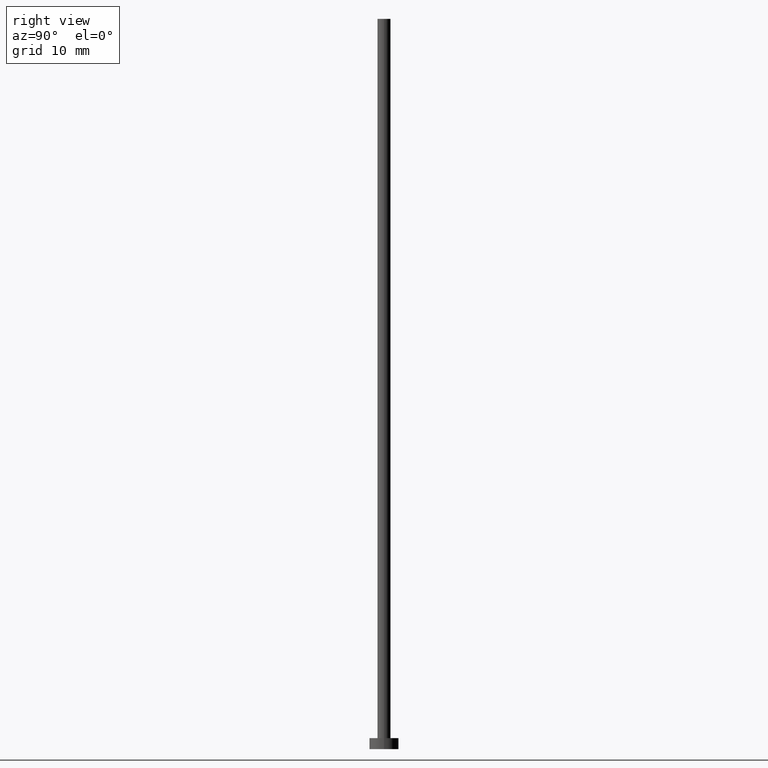
[diagram: clean part render]
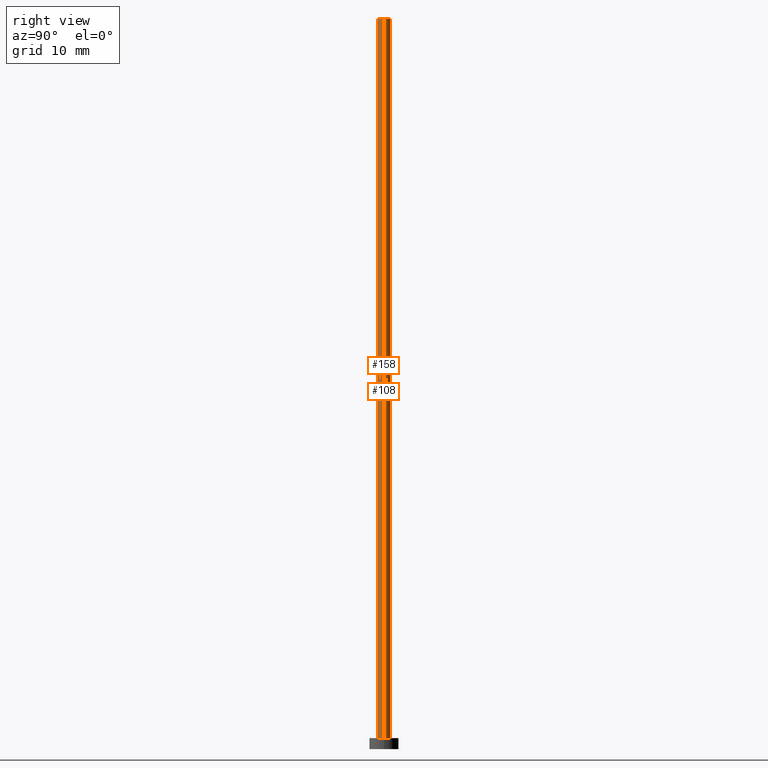
[diagram: same view with one multi-face feature highlighted, each face labeled with its STEP entity id]
A machine part, right view. The highlighted faces form ONE feature: a constant-radius fillet chain: 2 tangent blend faces with common blend radius 0.9 mm. The faces share edges in the B-rep.
Their STEP definitions:
[1] entity #158 (Cylinder):
#2 = AXIS2_PLACEMENT_3D ( 'NONE', #97, #25, #206 ) ;
#3 = ORIENTED_EDGE ( 'NONE', *, *, #219, .F. ) ;
#6 = EDGE_CURVE ( 'NONE', #112, #200, #64, .T. ) ;
#21 = CARTESIAN_POINT ( 'NONE',  ( 0.000000000000000000, 0.000000000000000000, 100.0000000000000000 ) ) ;
#25 = DIRECTION ( 'NONE',  ( -0.000000000000000000, -0.000000000000000000, -1.000000000000000000 ) ) ;
#27 = FACE_OUTER_BOUND ( 'NONE', #123, .T. ) ;
#32 = CARTESIAN_POINT ( 'NONE',  ( 0.9000000000000000222, 1.102182119232617788E-16, 100.0000000000000000 ) ) ;
#41 = CYLINDRICAL_SURFACE ( 'NONE', #2, 0.9000000000000000222 ) ;
#61 = VERTEX_POINT ( 'NONE', #96 ) ;
#64 = CIRCLE ( 'NONE', #121, 0.9000000000000000222 ) ;
#70 = VECTOR ( 'NONE', #195, 1000.000000000000000 ) ;
#72 = CARTESIAN_POINT ( 'NONE',  ( 0.000000000000000000, 0.000000000000000000, 1.500000000000000000 ) ) ;
#75 = ORIENTED_EDGE ( 'NONE', *, *, #232, .T. ) ;
#91 = DIRECTION ( 'NONE',  ( 1.000000000000000000, 0.000000000000000000, 0.000000000000000000 ) ) ;
#92 = EDGE_CURVE ( 'NONE', #142, #200, #122, .T. ) ;
#96 = CARTESIAN_POINT ( 'NONE',  ( -0.9000000000000000222, 0.000000000000000000, 100.0000000000000000 ) ) ;
#97 = CARTESIAN_POINT ( 'NONE',  ( 0.000000000000000000, 0.000000000000000000, 100.0000000000000000 ) ) ;
#106 = DIRECTION ( 'NONE',  ( -0.000000000000000000, -0.000000000000000000, -1.000000000000000000 ) ) ;
#112 = VERTEX_POINT ( 'NONE', #226 ) ;
#121 = AXIS2_PLACEMENT_3D ( 'NONE', #72, #237, #151 ) ;
#122 = LINE ( 'NONE', #32, #234 ) ;
#123 = EDGE_LOOP ( 'NONE', ( #160, #3, #75, #208 ) ) ;
#141 = CIRCLE ( 'NONE', #202, 0.9000000000000000222 ) ;
#142 = VERTEX_POINT ( 'NONE', #192 ) ;
#151 = DIRECTION ( 'NONE',  ( 1.000000000000000000, 0.000000000000000000, 0.000000000000000000 ) ) ;
#158 = ADVANCED_FACE ( 'NONE', ( #27 ), #41, .T. ) ;
#160 = ORIENTED_EDGE ( 'NONE', *, *, #92, .F. ) ;
#171 = LINE ( 'NONE', #253, #70 ) ;
#192 = CARTESIAN_POINT ( 'NONE',  ( 0.9000000000000000222, 1.102182119232617788E-16, 100.0000000000000000 ) ) ;
#195 = DIRECTION ( 'NONE',  ( -0.000000000000000000, -0.000000000000000000, -1.000000000000000000 ) ) ;
#200 = VERTEX_POINT ( 'NONE', #252 ) ;
#202 = AXIS2_PLACEMENT_3D ( 'NONE', #21, #255, #91 ) ;
#206 = DIRECTION ( 'NONE',  ( -1.000000000000000000, 0.000000000000000000, 0.000000000000000000 ) ) ;
#208 = ORIENTED_EDGE ( 'NONE', *, *, #6, .T. ) ;
#219 = EDGE_CURVE ( 'NONE', #61, #142, #141, .T. ) ;
#226 = CARTESIAN_POINT ( 'NONE',  ( -0.9000000000000000222, 0.000000000000000000, 1.500000000000000000 ) ) ;
#232 = EDGE_CURVE ( 'NONE', #61, #112, #171, .T. ) ;
#234 = VECTOR ( 'NONE', #106, 1000.000000000000000 ) ;
#237 = DIRECTION ( 'NONE',  ( 0.000000000000000000, 0.000000000000000000, 1.000000000000000000 ) ) ;
#252 = CARTESIAN_POINT ( 'NONE',  ( 0.9000000000000000222, 1.102182119232617788E-16, 1.500000000000000000 ) ) ;
#253 = CARTESIAN_POINT ( 'NONE',  ( -0.9000000000000000222, 0.000000000000000000, 100.0000000000000000 ) ) ;
#255 = DIRECTION ( 'NONE',  ( 0.000000000000000000, 0.000000000000000000, 1.000000000000000000 ) ) ;
[2] entity #108 (Cylinder):
#1 = DIRECTION ( 'NONE',  ( 0.000000000000000000, 0.000000000000000000, 1.000000000000000000 ) ) ;
#7 = CARTESIAN_POINT ( 'NONE',  ( 0.000000000000000000, 0.000000000000000000, 100.0000000000000000 ) ) ;
#31 = DIRECTION ( 'NONE',  ( -0.000000000000000000, -0.000000000000000000, -1.000000000000000000 ) ) ;
#32 = CARTESIAN_POINT ( 'NONE',  ( 0.9000000000000000222, 1.102182119232617788E-16, 100.0000000000000000 ) ) ;
#33 = CIRCLE ( 'NONE', #169, 0.9000000000000000222 ) ;
#37 = DIRECTION ( 'NONE',  ( 1.000000000000000000, 0.000000000000000000, 0.000000000000000000 ) ) ;
#59 = EDGE_LOOP ( 'NONE', ( #199, #81, #191, #76 ) ) ;
#61 = VERTEX_POINT ( 'NONE', #96 ) ;
#69 = CYLINDRICAL_SURFACE ( 'NONE', #183, 0.9000000000000000222 ) ;
#70 = VECTOR ( 'NONE', #195, 1000.000000000000000 ) ;
#74 = EDGE_CURVE ( 'NONE', #200, #112, #33, .T. ) ;
#76 = ORIENTED_EDGE ( 'NONE', *, *, #232, .F. ) ;
#81 = ORIENTED_EDGE ( 'NONE', *, *, #92, .T. ) ;
#92 = EDGE_CURVE ( 'NONE', #142, #200, #122, .T. ) ;
#96 = CARTESIAN_POINT ( 'NONE',  ( -0.9000000000000000222, 0.000000000000000000, 100.0000000000000000 ) ) ;
#106 = DIRECTION ( 'NONE',  ( -0.000000000000000000, -0.000000000000000000, -1.000000000000000000 ) ) ;
#108 = ADVANCED_FACE ( 'NONE', ( #168 ), #69, .T. ) ;
#112 = VERTEX_POINT ( 'NONE', #226 ) ;
#122 = LINE ( 'NONE', #32, #234 ) ;
#128 = CARTESIAN_POINT ( 'NONE',  ( 0.000000000000000000, 0.000000000000000000, 100.0000000000000000 ) ) ;
#142 = VERTEX_POINT ( 'NONE', #192 ) ;
#145 = CARTESIAN_POINT ( 'NONE',  ( 0.000000000000000000, 0.000000000000000000, 1.500000000000000000 ) ) ;
#146 = DIRECTION ( 'NONE',  ( -1.000000000000000000, 0.000000000000000000, 0.000000000000000000 ) ) ;
#157 = DIRECTION ( 'NONE',  ( 0.000000000000000000, 0.000000000000000000, 1.000000000000000000 ) ) ;
#162 = EDGE_CURVE ( 'NONE', #142, #61, #173, .T. ) ;
#168 = FACE_OUTER_BOUND ( 'NONE', #59, .T. ) ;
#169 = AXIS2_PLACEMENT_3D ( 'NONE', #145, #157, #224 ) ;
#171 = LINE ( 'NONE', #253, #70 ) ;
#173 = CIRCLE ( 'NONE', #181, 0.9000000000000000222 ) ;
#181 = AXIS2_PLACEMENT_3D ( 'NONE', #128, #1, #37 ) ;
#183 = AXIS2_PLACEMENT_3D ( 'NONE', #7, #31, #146 ) ;
#191 = ORIENTED_EDGE ( 'NONE', *, *, #74, .T. ) ;
#192 = CARTESIAN_POINT ( 'NONE',  ( 0.9000000000000000222, 1.102182119232617788E-16, 100.0000000000000000 ) ) ;
#195 = DIRECTION ( 'NONE',  ( -0.000000000000000000, -0.000000000000000000, -1.000000000000000000 ) ) ;
#199 = ORIENTED_EDGE ( 'NONE', *, *, #162, .F. ) ;
#200 = VERTEX_POINT ( 'NONE', #252 ) ;
#224 = DIRECTION ( 'NONE',  ( 1.000000000000000000, 0.000000000000000000, 0.000000000000000000 ) ) ;
#226 = CARTESIAN_POINT ( 'NONE',  ( -0.9000000000000000222, 0.000000000000000000, 1.500000000000000000 ) ) ;
#232 = EDGE_CURVE ( 'NONE', #61, #112, #171, .T. ) ;
#234 = VECTOR ( 'NONE', #106, 1000.000000000000000 ) ;
#252 = CARTESIAN_POINT ( 'NONE',  ( 0.9000000000000000222, 1.102182119232617788E-16, 1.500000000000000000 ) ) ;
#253 = CARTESIAN_POINT ( 'NONE',  ( -0.9000000000000000222, 0.000000000000000000, 100.0000000000000000 ) ) ;